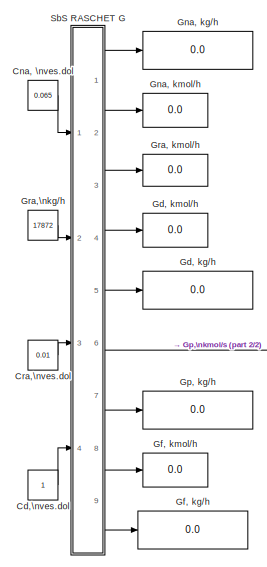
[diagram: root canvas - part 1/2, top left region]
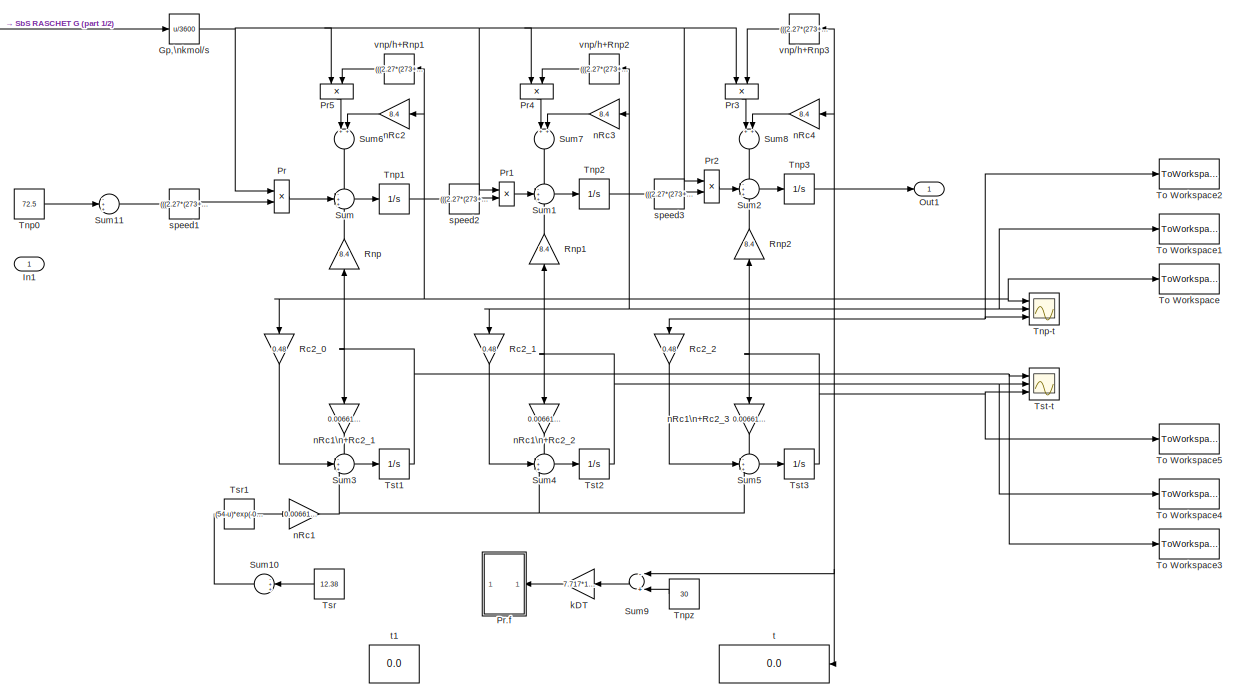
[diagram: root canvas - part 2/2, full width, middle band]
MODEL RC_AVO1
KIND model
BLOCK [Constant] Cd,\nves.dol
  SID = 2
BLOCK [Constant] Cna, \nves.dol
  SID = 5
  Value = 0.065
BLOCK [Constant] Cra,\nves.dol
  SID = 6
  Value = 0.01
BLOCK [Display] Gd, kg//h
  Decimation = 1
  Format = long
  Ports = [1]
  SID = 7
BLOCK [Display] Gd, kmol//h
  Decimation = 1
  Ports = [1]
  SID = 8
BLOCK [Display] Gf, kg//h
  Decimation = 1
  Format = long
  Ports = [1]
  SID = 9
BLOCK [Display] Gf, kmol//h
  Decimation = 1
  Ports = [1]
  SID = 10
BLOCK [Display] Gna, kg//h
  Decimation = 1
  Format = long
  Ports = [1]
  SID = 11
BLOCK [Display] Gna, kmol//h
  Decimation = 1
  Ports = [1]
  SID = 12
BLOCK [Display] Gp, kg//h
  Decimation = 1
  Format = long
  Ports = [1]
  SID = 14
BLOCK [Fcn] Gp,\nkmol//s
  Expr = u/3600
  SID = 13
BLOCK [Display] Gra, kmol//h
  Decimation = 1
  Ports = [1]
  SID = 16
BLOCK [Constant] Gra,\nkg//h
  SID = 15
  Value = 17872
BLOCK [Inport] In1
  IconDisplay = Port number
  SID = 1
BLOCK [Outport] Out1
  IconDisplay = Port number
  SID = 119
BLOCK [Product] Pr
  InputSameDT = off
  OutDataTypeStr = Inherit: Inherit via internal rule
  Ports = [2, 1]
  SID = 17
  SaturateOnIntegerOverflow = off
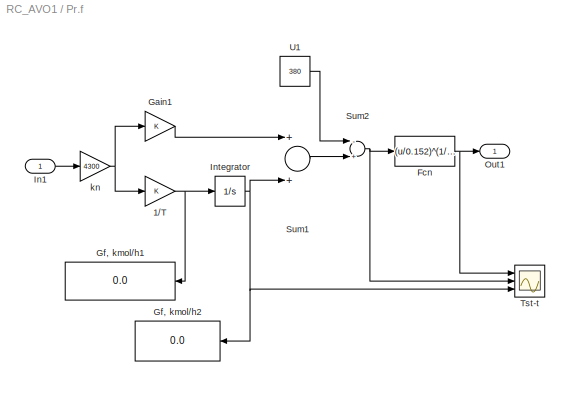
BLOCK [SubSystem] Pr.f
  Ports = [1, 1]
  RequestExecContextInheritance = off
  SID = 18
BLOCK [Gain] Pr.f/1//T
  OutDataTypeStr = Inherit: Inherit via internal rule
  ParamDataTypeStr = Inherit: Inherit via internal rule
  SID = 20
  SaturateOnIntegerOverflow = off
BLOCK [Fcn] Pr.f/Fcn
  Expr = (u/0.152)^(1/2)
  SID = 21
BLOCK [Gain] Pr.f/Gain1
  OutDataTypeStr = Inherit: Inherit via internal rule
  ParamDataTypeStr = Inherit: Inherit via internal rule
  SID = 22
  SaturateOnIntegerOverflow = off
BLOCK [Display] Pr.f/Gf, kmol//h1
  Decimation = 1
  Ports = [1]
  SID = 23
BLOCK [Display] Pr.f/Gf, kmol//h2
  Decimation = 1
  Ports = [1]
  SID = 24
BLOCK [Inport] Pr.f/In1
  IconDisplay = Port number
  SID = 19
BLOCK [Integrator] Pr.f/Integrator
  InitialCondition = 403.6
  Ports = [1, 1]
  SID = 25
BLOCK [Outport] Pr.f/Out1
  IconDisplay = Port number
  SID = 30
BLOCK [Sum] Pr.f/Sum1
  InputSameDT = off
  OutDataTypeStr = Inherit: Inherit via internal rule
  Ports = [2, 1]
  SID = 26
  SaturateOnIntegerOverflow = off
BLOCK [Sum] Pr.f/Sum2
  InputSameDT = off
  Inputs = -+
  OutDataTypeStr = Inherit: Inherit via internal rule
  Ports = [2, 1]
  SID = 27
  SaturateOnIntegerOverflow = off
BLOCK [Scope] Pr.f/Tst-t
  DataFormat = StructureWithTime
  Floating = off
  NumInputPorts = 3
  Ports = [3]
  SID = 132
  SampleTime = 0
  SaveName = ScopeData2
  ShowLegends = off
  YMax = 354.532~633.998~913.686
  YMin = 320.767~573.618~826.668
BLOCK [Constant] Pr.f/U1
  SID = 28
  Value = 380
BLOCK [Gain] Pr.f/kn
  Gain = 4300
  OutDataTypeStr = Inherit: Inherit via internal rule
  ParamDataTypeStr = Inherit: Inherit via internal rule
  SID = 29
  SaturateOnIntegerOverflow = off
BLOCK [Product] Pr1
  InputSameDT = off
  OutDataTypeStr = Inherit: Inherit via internal rule
  Ports = [2, 1]
  SID = 31
  SaturateOnIntegerOverflow = off
BLOCK [Product] Pr2
  InputSameDT = off
  OutDataTypeStr = Inherit: Inherit via internal rule
  Ports = [2, 1]
  SID = 32
  SaturateOnIntegerOverflow = off
BLOCK [Product] Pr3
  InputSameDT = off
  OutDataTypeStr = Inherit: Inherit via internal rule
  Ports = [2, 1]
  SID = 33
  SaturateOnIntegerOverflow = off
BLOCK [Product] Pr4
  InputSameDT = off
  OutDataTypeStr = Inherit: Inherit via internal rule
  Ports = [2, 1]
  SID = 34
  SaturateOnIntegerOverflow = off
BLOCK [Product] Pr5
  InputSameDT = off
  OutDataTypeStr = Inherit: Inherit via internal rule
  Ports = [2, 1]
  SID = 35
  SaturateOnIntegerOverflow = off
BLOCK [Gain] Rc2_0
  Gain = 0.48
  OutDataTypeStr = Inherit: Inherit via internal rule
  ParamDataTypeStr = Inherit: Inherit via internal rule
  SID = 36
  SaturateOnIntegerOverflow = off
BLOCK [Gain] Rc2_1
  Gain = 0.48
  OutDataTypeStr = Inherit: Inherit via internal rule
  ParamDataTypeStr = Inherit: Inherit via internal rule
  SID = 37
  SaturateOnIntegerOverflow = off
BLOCK [Gain] Rc2_2
  Gain = 0.48
  OutDataTypeStr = Inherit: Inherit via internal rule
  ParamDataTypeStr = Inherit: Inherit via internal rule
  SID = 38
  SaturateOnIntegerOverflow = off
BLOCK [Gain] Rnp
  Gain = 8.4
  OutDataTypeStr = Inherit: Inherit via internal rule
  ParamDataTypeStr = Inherit: Inherit via internal rule
  SID = 39
  SaturateOnIntegerOverflow = off
BLOCK [Gain] Rnp1
  Gain = 8.4
  OutDataTypeStr = Inherit: Inherit via internal rule
  ParamDataTypeStr = Inherit: Inherit via internal rule
  SID = 40
  SaturateOnIntegerOverflow = off
BLOCK [Gain] Rnp2
  Gain = 8.4
  OutDataTypeStr = Inherit: Inherit via internal rule
  ParamDataTypeStr = Inherit: Inherit via internal rule
  SID = 41
  SaturateOnIntegerOverflow = off
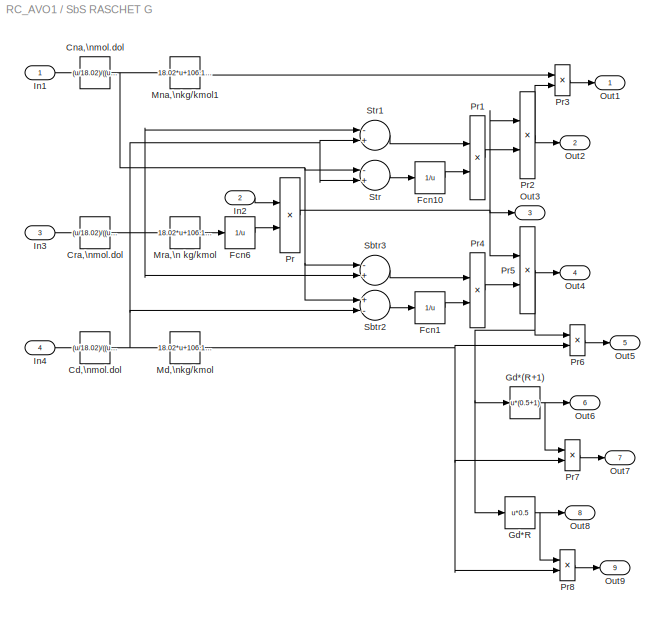
BLOCK [SubSystem] SbS RASCHET G
  Ports = [4, 9]
  RequestExecContextInheritance = off
  SID = 42
BLOCK [Fcn] SbS RASCHET G/Cd,\nmol.dol
  Expr = (u/18.02)/((u/18.02)+((1-u)/106.12))
  SID = 47
BLOCK [Fcn] SbS RASCHET G/Cna,\nmol.dol
  Expr = (u/18.02)/((u/18.02)+((1-u)/106.12))
  SID = 48
BLOCK [Fcn] SbS RASCHET G/Cra,\nmol.dol
  Expr = (u/18.02)/((u/18.02)+((1-u)/106.12))
  SID = 49
BLOCK [Fcn] SbS RASCHET G/Fcn1
  Expr = 1/u
  SID = 50
BLOCK [Fcn] SbS RASCHET G/Fcn10
  Expr = 1/u
  SID = 51
BLOCK [Fcn] SbS RASCHET G/Fcn6
  Expr = 1/u
  SID = 52
BLOCK [Fcn] SbS RASCHET G/Gd*(R+1)
  Expr = u*(0.5+1)
  SID = 53
BLOCK [Fcn] SbS RASCHET G/Gd*R
  Expr = u*0.5
  SID = 54
BLOCK [Inport] SbS RASCHET G/In1
  IconDisplay = Port number
  SID = 43
BLOCK [Inport] SbS RASCHET G/In2
  IconDisplay = Port number
  Port = 2
  SID = 44
BLOCK [Inport] SbS RASCHET G/In3
  IconDisplay = Port number
  Port = 3
  SID = 45
BLOCK [Inport] SbS RASCHET G/In4
  IconDisplay = Port number
  Port = 4
  SID = 46
BLOCK [Fcn] SbS RASCHET G/Md,\nkg//kmol
  Expr = 18.02*u+106.12*(1-u)
  SID = 55
BLOCK [Fcn] SbS RASCHET G/Mna,\nkg//kmol1
  Expr = 18.02*u+106.12*(1-u)
  SID = 56
BLOCK [Fcn] SbS RASCHET G/Mra,\n kg//kmol
  Expr = 18.02*u+106.12*(1-u)
  SID = 57
BLOCK [Outport] SbS RASCHET G/Out1
  IconDisplay = Port number
  SID = 71
BLOCK [Outport] SbS RASCHET G/Out2
  IconDisplay = Port number
  Port = 2
  SID = 72
BLOCK [Outport] SbS RASCHET G/Out3
  IconDisplay = Port number
  Port = 3
  SID = 73
BLOCK [Outport] SbS RASCHET G/Out4
  IconDisplay = Port number
  Port = 4
  SID = 74
BLOCK [Outport] SbS RASCHET G/Out5
  IconDisplay = Port number
  Port = 5
  SID = 75
BLOCK [Outport] SbS RASCHET G/Out6
  IconDisplay = Port number
  Port = 6
  SID = 76
BLOCK [Outport] SbS RASCHET G/Out7
  IconDisplay = Port number
  Port = 7
  SID = 77
BLOCK [Outport] SbS RASCHET G/Out8
  IconDisplay = Port number
  Port = 8
  SID = 78
BLOCK [Outport] SbS RASCHET G/Out9
  IconDisplay = Port number
  Port = 9
  SID = 79
BLOCK [Product] SbS RASCHET G/Pr
  InputSameDT = off
  OutDataTypeStr = Inherit: Inherit via internal rule
  Ports = [2, 1]
  SID = 58
  SaturateOnIntegerOverflow = off
BLOCK [Product] SbS RASCHET G/Pr1
  InputSameDT = off
  OutDataTypeStr = Inherit: Inherit via internal rule
  Ports = [2, 1]
  SID = 59
  SaturateOnIntegerOverflow = off
BLOCK [Product] SbS RASCHET G/Pr2
  InputSameDT = off
  OutDataTypeStr = Inherit: Inherit via internal rule
  Ports = [2, 1]
  SID = 60
  SaturateOnIntegerOverflow = off
BLOCK [Product] SbS RASCHET G/Pr3
  InputSameDT = off
  OutDataTypeStr = Inherit: Inherit via internal rule
  Ports = [2, 1]
  SID = 61
  SaturateOnIntegerOverflow = off
BLOCK [Product] SbS RASCHET G/Pr4
  InputSameDT = off
  OutDataTypeStr = Inherit: Inherit via internal rule
  Ports = [2, 1]
  SID = 62
  SaturateOnIntegerOverflow = off
BLOCK [Product] SbS RASCHET G/Pr5
  InputSameDT = off
  OutDataTypeStr = Inherit: Inherit via internal rule
  Ports = [2, 1]
  SID = 63
  SaturateOnIntegerOverflow = off
BLOCK [Product] SbS RASCHET G/Pr6
  InputSameDT = off
  OutDataTypeStr = Inherit: Inherit via internal rule
  Ports = [2, 1]
  SID = 64
  SaturateOnIntegerOverflow = off
BLOCK [Product] SbS RASCHET G/Pr7
  InputSameDT = off
  OutDataTypeStr = Inherit: Inherit via internal rule
  Ports = [2, 1]
  SID = 65
  SaturateOnIntegerOverflow = off
BLOCK [Product] SbS RASCHET G/Pr8
  InputSameDT = off
  OutDataTypeStr = Inherit: Inherit via internal rule
  Ports = [2, 1]
  SID = 66
  SaturateOnIntegerOverflow = off
BLOCK [Sum] SbS RASCHET G/Sbtr2
  InputSameDT = off
  Inputs = +-
  OutDataTypeStr = Inherit: Inherit via internal rule
  Ports = [2, 1]
  SID = 67
  SaturateOnIntegerOverflow = off
BLOCK [Sum] SbS RASCHET G/Sbtr3
  InputSameDT = off
  Inputs = -+
  OutDataTypeStr = Inherit: Inherit via internal rule
  Ports = [2, 1]
  SID = 68
  SaturateOnIntegerOverflow = off
BLOCK [Sum] SbS RASCHET G/Str
  InputSameDT = off
  Inputs = -+
  OutDataTypeStr = Inherit: Inherit via internal rule
  Ports = [2, 1]
  SID = 69
  SaturateOnIntegerOverflow = off
BLOCK [Sum] SbS RASCHET G/Str1
  InputSameDT = off
  Inputs = -+
  OutDataTypeStr = Inherit: Inherit via internal rule
  Ports = [2, 1]
  SID = 70
  SaturateOnIntegerOverflow = off
BLOCK [Sum] Sum
  IconShape = round
  InputSameDT = off
  Inputs = -++
  OutDataTypeStr = Inherit: Inherit via internal rule
  Ports = [3, 1]
  SID = 80
  SaturateOnIntegerOverflow = off
BLOCK [Sum] Sum1
  IconShape = round
  InputSameDT = off
  Inputs = -++
  OutDataTypeStr = Inherit: Inherit via internal rule
  Ports = [3, 1]
  SID = 81
  SaturateOnIntegerOverflow = off
BLOCK [Sum] Sum10
  IconShape = round
  InputSameDT = off
  Inputs = -++
  OutDataTypeStr = Inherit: Inherit via internal rule
  Ports = [3, 1]
  SID = 122
  SaturateOnIntegerOverflow = off
BLOCK [Sum] Sum11
  IconShape = round
  InputSameDT = off
  Inputs = -++
  OutDataTypeStr = Inherit: Inherit via internal rule
  Ports = [3, 1]
  SID = 130
  SaturateOnIntegerOverflow = off
BLOCK [Sum] Sum2
  IconShape = round
  InputSameDT = off
  Inputs = -++
  OutDataTypeStr = Inherit: Inherit via internal rule
  Ports = [3, 1]
  SID = 82
  SaturateOnIntegerOverflow = off
BLOCK [Sum] Sum3
  IconShape = round
  InputSameDT = off
  Inputs = -++
  OutDataTypeStr = Inherit: Inherit via internal rule
  Ports = [3, 1]
  SID = 83
  SaturateOnIntegerOverflow = off
BLOCK [Sum] Sum4
  IconShape = round
  InputSameDT = off
  Inputs = -++
  OutDataTypeStr = Inherit: Inherit via internal rule
  Ports = [3, 1]
  SID = 84
  SaturateOnIntegerOverflow = off
BLOCK [Sum] Sum5
  IconShape = round
  InputSameDT = off
  Inputs = -++
  OutDataTypeStr = Inherit: Inherit via internal rule
  Ports = [3, 1]
  SID = 85
  SaturateOnIntegerOverflow = off
BLOCK [Sum] Sum6
  InputSameDT = off
  OutDataTypeStr = Inherit: Inherit via internal rule
  Ports = [2, 1]
  SID = 86
  SaturateOnIntegerOverflow = off
BLOCK [Sum] Sum7
  InputSameDT = off
  OutDataTypeStr = Inherit: Inherit via internal rule
  Ports = [2, 1]
  SID = 87
  SaturateOnIntegerOverflow = off
BLOCK [Sum] Sum8
  InputSameDT = off
  OutDataTypeStr = Inherit: Inherit via internal rule
  Ports = [2, 1]
  SID = 88
  SaturateOnIntegerOverflow = off
BLOCK [Sum] Sum9
  InputSameDT = off
  Inputs = -+
  OutDataTypeStr = Inherit: Inherit via internal rule
  Ports = [2, 1]
  SID = 89
  SaturateOnIntegerOverflow = off
BLOCK [Scope] Tnp-t
  DataFormat = StructureWithTime
  Floating = off
  NumInputPorts = 3
  Ports = [3]
  SID = 90
  SampleTime = 0
  ShowLegends = off
  YMax = 75.1278~74.1435~73.1721
  YMin = 67.9728~67.0823~66.2033
BLOCK [Constant] Tnp0
  SID = 92
  Value = 72.5
BLOCK [Integrator] Tnp1
  InitialCondition = 64.99850000
  Ports = [1, 1]
  SID = 93
BLOCK [Integrator] Tnp2
  InitialCondition = 57.49700000
  Ports = [1, 1]
  SID = 94
BLOCK [Integrator] Tnp3
  InitialCondition = 49.99550000
  Ports = [1, 1]
  SID = 95
BLOCK [Constant] Tnpz
  SID = 96
  Value = 30
BLOCK [ToWorkspace] To Workspace
  FixptAsFi = on
  MaxDataPoints = inf
  Ports = [1]
  SID = 124
  SampleTime = -1
  Save2DSignal = 3-D array (concatenate along third dimension)
  SaveFormat = Structure With Time
  VariableName = TV_AVO
BLOCK [ToWorkspace] To Workspace1
  FixptAsFi = on
  MaxDataPoints = inf
  Ports = [1]
  SID = 125
  SampleTime = -1
  Save2DSignal = 3-D array (concatenate along third dimension)
  SaveFormat = Structure With Time
  VariableName = TV_AVO1
BLOCK [ToWorkspace] To Workspace2
  FixptAsFi = on
  MaxDataPoints = inf
  Ports = [1]
  SID = 126
  SampleTime = -1
  Save2DSignal = 3-D array (concatenate along third dimension)
  SaveFormat = Structure With Time
  VariableName = TV_AVO2
BLOCK [ToWorkspace] To Workspace3
  FixptAsFi = on
  MaxDataPoints = inf
  Ports = [1]
  SID = 127
  SampleTime = -1
  Save2DSignal = 3-D array (concatenate along third dimension)
  SaveFormat = Structure With Time
  VariableName = TST_AVO
BLOCK [ToWorkspace] To Workspace4
  FixptAsFi = on
  MaxDataPoints = inf
  Ports = [1]
  SID = 128
  SampleTime = -1
  Save2DSignal = 3-D array (concatenate along third dimension)
  SaveFormat = Structure With Time
  VariableName = TST_AVO1
BLOCK [ToWorkspace] To Workspace5
  FixptAsFi = on
  MaxDataPoints = inf
  Ports = [1]
  SID = 129
  SampleTime = -1
  Save2DSignal = 3-D array (concatenate along third dimension)
  SaveFormat = Structure With Time
  VariableName = TST_AVO2
BLOCK [Constant] Tsr
  SID = 123
  Value = 12.38
BLOCK [Fcn] Tsr1
  Expr = (54-u)*exp(-0.06*101.25)+u
  SID = 97
BLOCK [Scope] Tst-t
  DataFormat = StructureWithTime
  Floating = off
  NumInputPorts = 3
  Ports = [3]
  SID = 98
  SampleTime = 0
  SaveName = ScopeData1
  ShowLegends = off
  YMax = 354.532~633.998~913.686
  YMin = 320.767~573.618~826.668
BLOCK [Integrator] Tst1
  InitialCondition = 27.020
  Ports = [1, 1]
  SID = 100
BLOCK [Integrator] Tst2
  InitialCondition = 25.1550
  Ports = [1, 1]
  SID = 101
BLOCK [Integrator] Tst3
  InitialCondition = 23.29
  Ports = [1, 1]
  SID = 102
BLOCK [Gain] kDT
  Gain = 7.717*10^(-5)
  OutDataTypeStr = Inherit: Inherit via internal rule
  ParamDataTypeStr = Inherit: Inherit via internal rule
  SID = 103
  SaturateOnIntegerOverflow = off
BLOCK [Gain] nRc1
  Gain = 0.00661*134
  OutDataTypeStr = Inherit: Inherit via internal rule
  ParamDataTypeStr = Inherit: Inherit via internal rule
  SID = 104
  SaturateOnIntegerOverflow = off
BLOCK [Gain] nRc1\n+Rc2_1
  Gain = 0.00661*134+0.48
  OutDataTypeStr = Inherit: Inherit via internal rule
  ParamDataTypeStr = Inherit: Inherit via internal rule
  SID = 105
  SaturateOnIntegerOverflow = off
BLOCK [Gain] nRc1\n+Rc2_2
  Gain = 0.00661*134+0.48
  OutDataTypeStr = Inherit: Inherit via internal rule
  ParamDataTypeStr = Inherit: Inherit via internal rule
  SID = 106
  SaturateOnIntegerOverflow = off
BLOCK [Gain] nRc1\n+Rc2_3
  Gain = 0.00661*134+0.48
  OutDataTypeStr = Inherit: Inherit via internal rule
  ParamDataTypeStr = Inherit: Inherit via internal rule
  SID = 107
  SaturateOnIntegerOverflow = off
BLOCK [Gain] nRc2
  Gain = 8.4
  OutDataTypeStr = Inherit: Inherit via internal rule
  ParamDataTypeStr = Inherit: Inherit via internal rule
  SID = 108
  SaturateOnIntegerOverflow = off
BLOCK [Gain] nRc3
  Gain = 8.4
  OutDataTypeStr = Inherit: Inherit via internal rule
  ParamDataTypeStr = Inherit: Inherit via internal rule
  SID = 109
  SaturateOnIntegerOverflow = off
BLOCK [Gain] nRc4
  Gain = 8.4
  OutDataTypeStr = Inherit: Inherit via internal rule
  ParamDataTypeStr = Inherit: Inherit via internal rule
  SID = 110
  SaturateOnIntegerOverflow = off
BLOCK [Fcn] speed1
  Expr = (((2.27*(273+u))/1.4184)/1.333)*u
  SID = 111
BLOCK [Fcn] speed2
  Expr = (((2.27*(273+u))/1.4184)/1.333)*u
  SID = 112
BLOCK [Fcn] speed3
  Expr = (((2.27*(273+u))/1.4184)/1.333)*u
  SID = 113
BLOCK [Display] t
  Decimation = 1
  Ports = [1]
  SID = 114
BLOCK [Display] t1
  Decimation = 1
  Ports = [1]
  SID = 115
BLOCK [Fcn] vnp//h+Rnp1
  Expr = (((2.27*(273+u))/1.4184)/1.333)*u
  SID = 116
BLOCK [Fcn] vnp//h+Rnp2
  Expr = (((2.27*(273+u))/1.4184)/1.333)*u
  SID = 117
BLOCK [Fcn] vnp//h+Rnp3
  Expr = (((2.27*(273+u))/1.4184)/1.333)*u
  SID = 118
LINE Cd,\nves.dol:1 -> SbS RASCHET G:4
LINE Cna, \nves.dol:1 -> SbS RASCHET G:1
LINE Cra,\nves.dol:1 -> SbS RASCHET G:3
NET Gp,\nkmol//s:1 -> Pr1:1, Pr2:1, Pr3:1, Pr4:1, Pr5:1, Pr:1
LINE Gra,\nkg//h:1 -> SbS RASCHET G:2
NET Pr.f/1//T:1 -> Pr.f/Gf, kmol//h1:1, Pr.f/Integrator:1
NET Pr.f/Fcn:1 -> Pr.f/Out1:1, Pr.f/Tst-t:1
LINE Pr.f/Gain1:1 -> Pr.f/Sum1:1
LINE Pr.f/In1:1 -> Pr.f/kn:1
NET Pr.f/Integrator:1 -> Pr.f/Gf, kmol//h2:1, Pr.f/Sum1:2, Pr.f/Tst-t:3
LINE Pr.f/Sum1:1 -> Pr.f/Sum2:2
NET Pr.f/Sum2:1 -> Pr.f/Fcn:1, Pr.f/Tst-t:2
LINE Pr.f/U1:1 -> Pr.f/Sum2:1
NET Pr.f/kn:1 -> Pr.f/1//T:1, Pr.f/Gain1:1
LINE Pr1:1 -> Sum1:2
LINE Pr2:1 -> Sum2:2
LINE Pr3:1 -> Sum8:1
LINE Pr4:1 -> Sum7:1
LINE Pr5:1 -> Sum6:1
LINE Pr:1 -> Sum:2
LINE Rc2_0:1 -> Sum3:2
LINE Rc2_1:1 -> Sum4:2
LINE Rc2_2:1 -> Sum5:2
LINE Rnp1:1 -> Sum1:3
LINE Rnp2:1 -> Sum2:3
LINE Rnp:1 -> Sum:3
NET SbS RASCHET G/Cd,\nmol.dol:1 -> SbS RASCHET G/Md,\nkg//kmol:1, SbS RASCHET G/Sbtr2:2, SbS RASCHET G/Str1:2, SbS RASCHET G/Str:2
NET SbS RASCHET G/Cna,\nmol.dol:1 -> SbS RASCHET G/Mna,\nkg//kmol1:1, SbS RASCHET G/Sbtr2:1, SbS RASCHET G/Sbtr3:1, SbS RASCHET G/Str:1
NET SbS RASCHET G/Cra,\nmol.dol:1 -> SbS RASCHET G/Mra,\n kg//kmol:1, SbS RASCHET G/Sbtr3:2, SbS RASCHET G/Str1:1
LINE SbS RASCHET G/Fcn10:1 -> SbS RASCHET G/Pr1:2
LINE SbS RASCHET G/Fcn1:1 -> SbS RASCHET G/Pr4:2
LINE SbS RASCHET G/Fcn6:1 -> SbS RASCHET G/Pr:2
NET SbS RASCHET G/Gd*(R+1):1 -> SbS RASCHET G/Out6:1, SbS RASCHET G/Pr7:1
NET SbS RASCHET G/Gd*R:1 -> SbS RASCHET G/Out8:1, SbS RASCHET G/Pr8:1
LINE SbS RASCHET G/In1:1 -> SbS RASCHET G/Cna,\nmol.dol:1
LINE SbS RASCHET G/In2:1 -> SbS RASCHET G/Pr:1
LINE SbS RASCHET G/In3:1 -> SbS RASCHET G/Cra,\nmol.dol:1
LINE SbS RASCHET G/In4:1 -> SbS RASCHET G/Cd,\nmol.dol:1
NET SbS RASCHET G/Md,\nkg//kmol:1 -> SbS RASCHET G/Pr6:2, SbS RASCHET G/Pr7:2, SbS RASCHET G/Pr8:2
LINE SbS RASCHET G/Mna,\nkg//kmol1:1 -> SbS RASCHET G/Pr3:1
LINE SbS RASCHET G/Mra,\n kg//kmol:1 -> SbS RASCHET G/Fcn6:1
LINE SbS RASCHET G/Pr1:1 -> SbS RASCHET G/Pr2:2
NET SbS RASCHET G/Pr2:1 -> SbS RASCHET G/Out2:1, SbS RASCHET G/Pr3:2
LINE SbS RASCHET G/Pr3:1 -> SbS RASCHET G/Out1:1
LINE SbS RASCHET G/Pr4:1 -> SbS RASCHET G/Pr5:2
NET SbS RASCHET G/Pr5:1 -> SbS RASCHET G/Gd*(R+1):1, SbS RASCHET G/Gd*R:1, SbS RASCHET G/Out4:1, SbS RASCHET G/Pr6:1
LINE SbS RASCHET G/Pr6:1 -> SbS RASCHET G/Out5:1
LINE SbS RASCHET G/Pr7:1 -> SbS RASCHET G/Out7:1
LINE SbS RASCHET G/Pr8:1 -> SbS RASCHET G/Out9:1
NET SbS RASCHET G/Pr:1 -> SbS RASCHET G/Out3:1, SbS RASCHET G/Pr2:1, SbS RASCHET G/Pr5:1
LINE SbS RASCHET G/Sbtr2:1 -> SbS RASCHET G/Fcn1:1
LINE SbS RASCHET G/Sbtr3:1 -> SbS RASCHET G/Pr4:1
LINE SbS RASCHET G/Str1:1 -> SbS RASCHET G/Pr1:1
LINE SbS RASCHET G/Str:1 -> SbS RASCHET G/Fcn10:1
LINE SbS RASCHET G:1 -> Gna, kg//h:1
LINE SbS RASCHET G:2 -> Gna, kmol//h:1
LINE SbS RASCHET G:3 -> Gra, kmol//h:1
LINE SbS RASCHET G:4 -> Gd, kmol//h:1
LINE SbS RASCHET G:5 -> Gd, kg//h:1
LINE SbS RASCHET G:6 -> Gp,\nkmol//s:1
LINE SbS RASCHET G:7 -> Gp, kg//h:1
LINE SbS RASCHET G:8 -> Gf, kmol//h:1
LINE SbS RASCHET G:9 -> Gf, kg//h:1
LINE Sum10:1 -> Tsr1:1
LINE Sum11:1 -> speed1:1
LINE Sum1:1 -> Tnp2:1
LINE Sum2:1 -> Tnp3:1
LINE Sum3:1 -> Tst1:1
LINE Sum4:1 -> Tst2:1
LINE Sum5:1 -> Tst3:1
LINE Sum6:1 -> Sum:1
LINE Sum7:1 -> Sum1:1
LINE Sum8:1 -> Sum2:1
LINE Sum9:1 -> kDT:1
LINE Sum:1 -> Tnp1:1
LINE Tnp0:1 -> Sum11:2
NET Tnp1:1 -> Rc2_0:1, Tnp-t:1, To Workspace:1, nRc2:1, speed2:1, vnp//h+Rnp1:1
NET Tnp2:1 -> Rc2_1:1, Tnp-t:2, To Workspace1:1, nRc3:1, speed3:1, vnp//h+Rnp2:1
NET Tnp3:1 -> Out1:1, Rc2_2:1, Sum9:1, Tnp-t:3, To Workspace2:1, nRc4:1, t:1, vnp//h+Rnp3:1
LINE Tnpz:1 -> Sum9:2
LINE Tsr1:1 -> nRc1:1
LINE Tsr:1 -> Sum10:2
NET Tst1:1 -> Rnp:1, To Workspace3:1, Tst-t:1, nRc1\n+Rc2_1:1
NET Tst2:1 -> Rnp1:1, To Workspace4:1, Tst-t:2, nRc1\n+Rc2_2:1
NET Tst3:1 -> Rnp2:1, To Workspace5:1, Tst-t:3, nRc1\n+Rc2_3:1
LINE kDT:1 -> Pr.f:1
NET nRc1:1 -> Sum3:3, Sum4:3, Sum5:3
LINE nRc1\n+Rc2_1:1 -> Sum3:1
LINE nRc1\n+Rc2_2:1 -> Sum4:1
LINE nRc1\n+Rc2_3:1 -> Sum5:1
LINE nRc2:1 -> Sum6:2
LINE nRc3:1 -> Sum7:2
LINE nRc4:1 -> Sum8:2
LINE speed1:1 -> Pr:2
LINE speed2:1 -> Pr1:2
LINE speed3:1 -> Pr2:2
LINE vnp//h+Rnp1:1 -> Pr5:2
LINE vnp//h+Rnp2:1 -> Pr4:2
LINE vnp//h+Rnp3:1 -> Pr3:2
note: NET lines group one-source signal fan-out (src -> all destinations, sorted); 1:1 wires keep LINE
